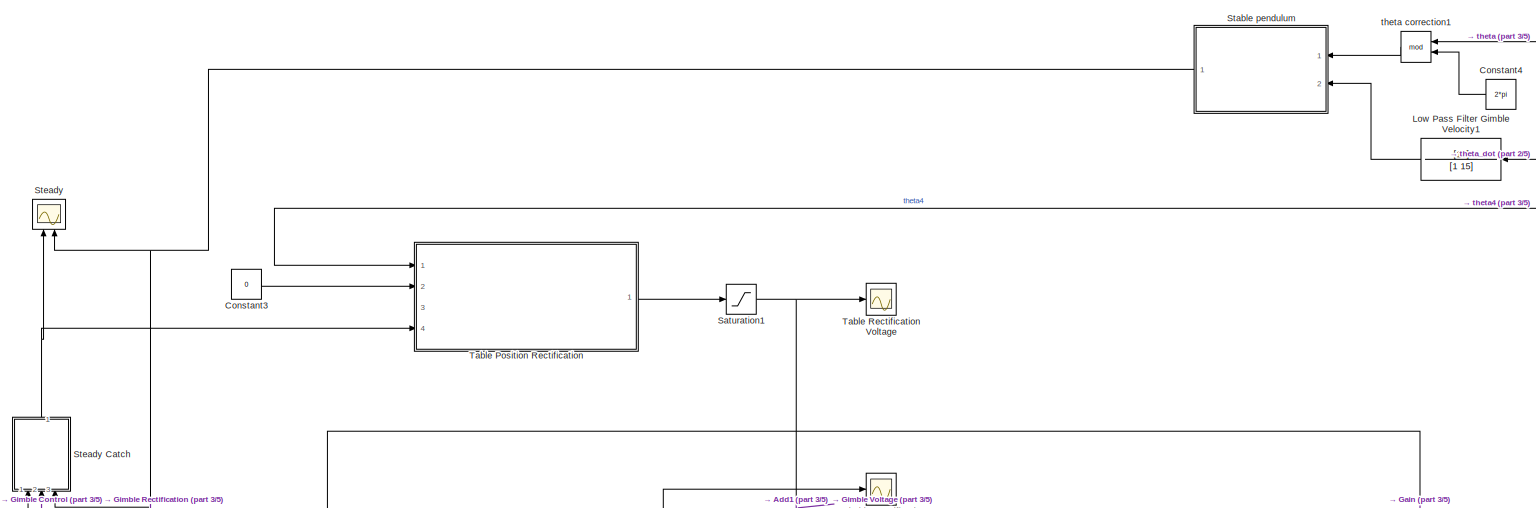
[diagram: root canvas - part 1/5, top left region]
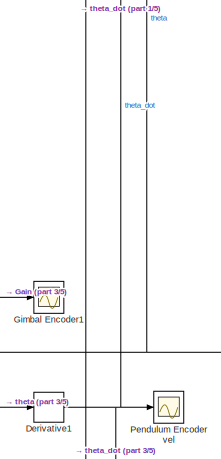
[diagram: root canvas - part 2/5, top right region]
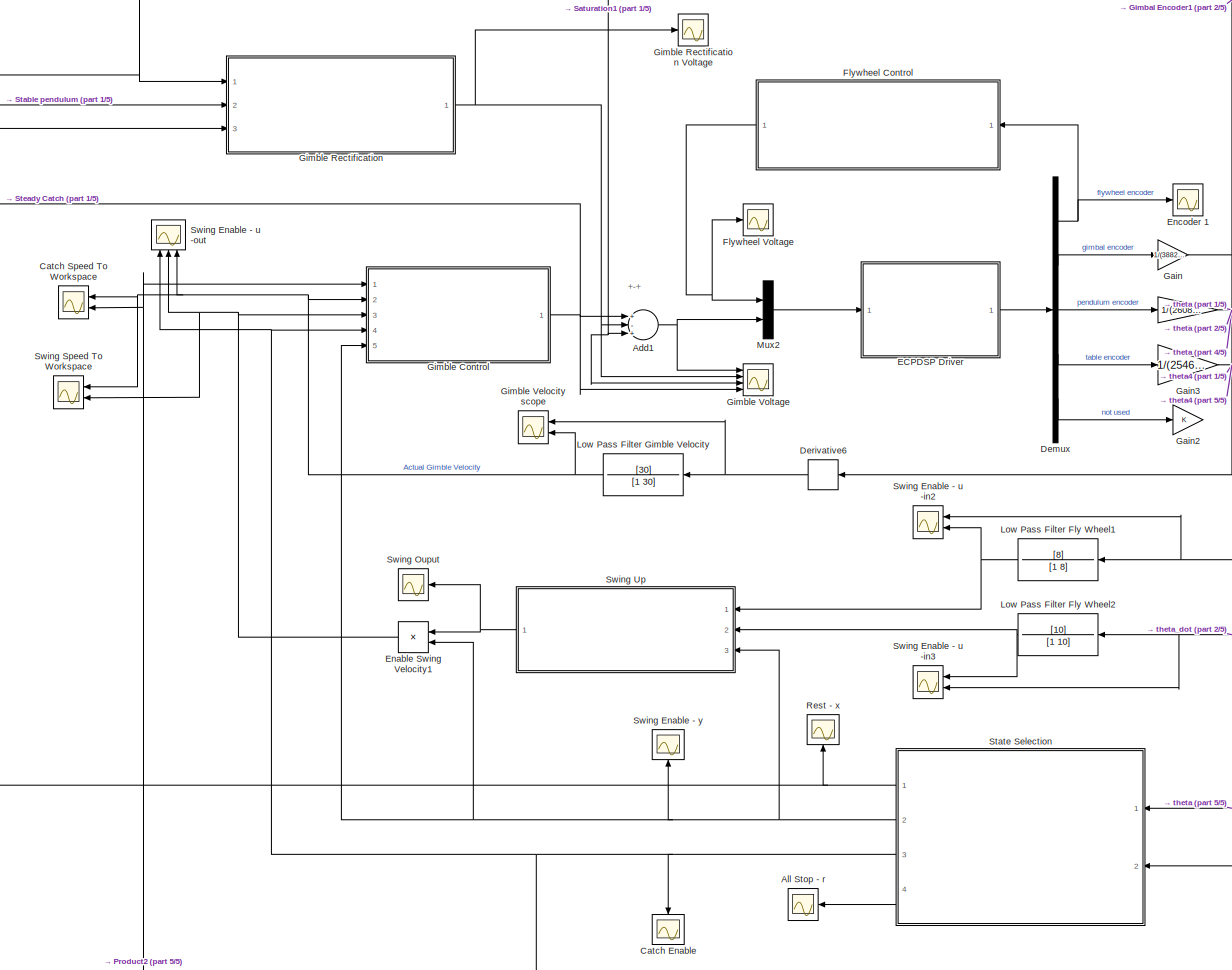
[diagram: root canvas - part 3/5, central region]
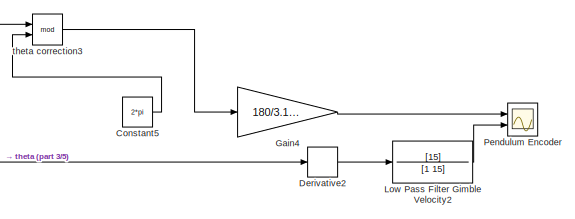
[diagram: root canvas - part 4/5, middle right region]
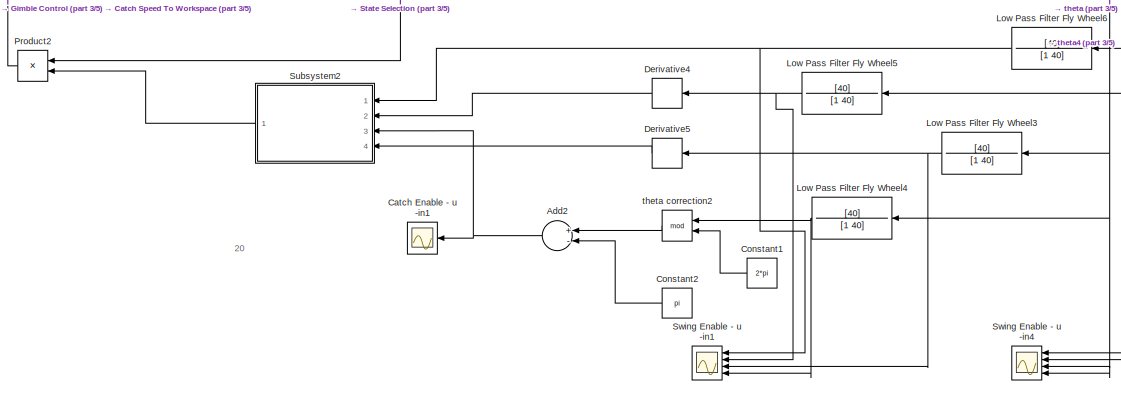
[diagram: root canvas - part 5/5, bottom center region]
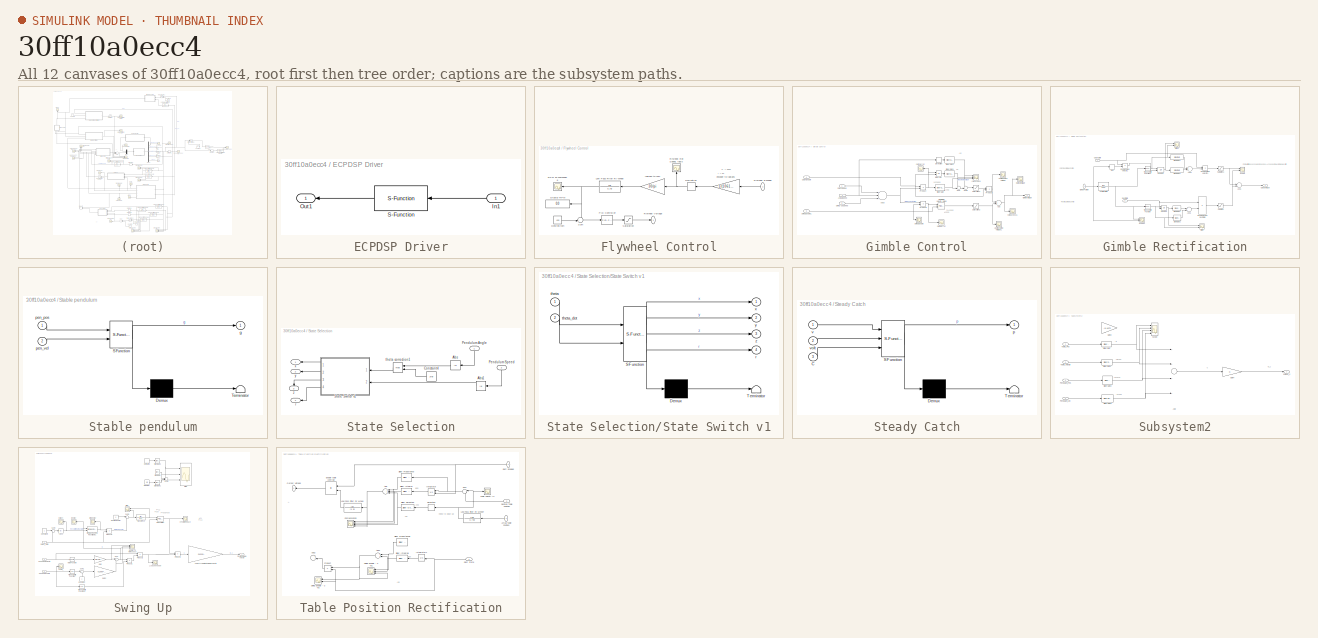
[diagram: thumbnail index - all 12 canvases of the model, root first then tree order]
MODEL slx_30ff10a0ecc4
KIND model
BLOCK [Sum] Add1
  InputSameDT = off
  Inputs = +-+
  OutDataTypeStr = Inherit: Inherit via internal rule
  Ports = [3, 1]
  SaturateOnIntegerOverflow = off
BLOCK [Sum] Add2
  InputSameDT = off
  Inputs = +-
  OutDataTypeStr = Inherit: Inherit via internal rule
  Ports = [2, 1]
  SaturateOnIntegerOverflow = off
BLOCK [Scope] All Stop - r
  Floating = off
  LimitDataPoints = off
  NumInputPorts = 1
  Ports = [1]
  SaveName = ScopeData33
  ShowLegends = off
  YMax = 10
  YMin = -10
BLOCK [Scope] Catch Enable
  Floating = off
  NumInputPorts = 1
  Ports = [1]
  SaveName = ScopeData12
  ShowLegends = off
  YMax = 1.05
  YMin = 0.95
BLOCK [Scope] Catch Enable - u -in1
  Floating = off
  NumInputPorts = 1
  Ports = [1]
  SaveName = ScopeData26
  ShowLegends = off
  YMax = 3.5
  YMin = -3.5
BLOCK [Scope] Catch Speed To Workspace
  DataFormat = StructureWithTime
  Floating = off
  LimitDataPoints = off
  NumInputPorts = 2
  Ports = [2]
  SaveName = Catch_Speed
  SaveToWorkspace = on
  ShowLegends = off
  YMax = 10~5
  YMin = -10~-5
BLOCK [Constant] Constant1
  Value = 2*pi
BLOCK [Constant] Constant2
  Value = pi
BLOCK [Constant] Constant3
  Value = 0
BLOCK [Constant] Constant4
  Value = 2*pi
BLOCK [Constant] Constant5
  Value = 2*pi
BLOCK [Demux] Demux
  Outputs = 5
  Ports = [1, 5]
BLOCK [Derivative] Derivative1
BLOCK [Derivative] Derivative2
BLOCK [Derivative] Derivative4
BLOCK [Derivative] Derivative5
BLOCK [Derivative] Derivative6
BLOCK [SubSystem] ECPDSP Driver
  FunctionWithSeparateData = off
  MaskHideContents = off
  MinAlgLoopOccurrences = off
  Opaque = off
  Ports = [1, 1]
  PropExecContextOutsideSubsystem = off
  RTWSystemCode = Auto
  RequestExecContextInheritance = off
BLOCK [Inport] ECPDSP Driver/In1
  IconDisplay = Port number
BLOCK [Outport] ECPDSP Driver/Out1
  IconDisplay = Port number
BLOCK [S-Function] ECPDSP Driver/S-Function
  EnableBusSupport = off
  FunctionName = ECPDSPDriver
  Parameters = BaseAddr,STime,TimeOutPer,HWAccess
  Ports = [1, 1]
BLOCK [Product] Enable Swing Velocity1
  InputSameDT = off
  OutDataTypeStr = Inherit: Inherit via internal rule
  Ports = [2, 1]
  RndMeth = Floor
  SaturateOnIntegerOverflow = off
BLOCK [Scope] Encoder 1
  DataFormat = StructureWithTime
  Floating = off
  LimitDataPoints = off
  NumInputPorts = 1
  Ports = [1]
  SampleTime = 0
  SaveName = ScopeData3
  ShowLegends = off
  YMax = 8.5e+06
  YMin = 1.5e+06
BLOCK [SubSystem] Flywheel Control
  FunctionWithSeparateData = off
  MaskHideContents = off
  MinAlgLoopOccurrences = off
  Opaque = off
  Ports = [1, 1]
  PropExecContextOutsideSubsystem = off
  RTWSystemCode = Auto
  RequestExecContextInheritance = off
BLOCK [Derivative] Flywheel Control/Derivative
BLOCK [Constant] Flywheel Control/Desired rpm
  Value = 400
BLOCK [Display] Flywheel Control/Display RPM
  Decimation = 1
  Lockdown = off
  Ports = [1]
BLOCK [Inport] Flywheel Control/Flywheel Encoder
  IconDisplay = Port number
BLOCK [Scope] Flywheel Control/Flywheel Rot Speed, rad//s
  DataFormat = StructureWithTime
  Floating = off
  NumInputPorts = 1
  Ports = [1]
  SampleTime = 0
  SaveName = ScopeData4
  ShowLegends = off
BLOCK [Outport] Flywheel Control/Flywheel Voltage
  IconDisplay = Port number
BLOCK [TransferFcn] Flywheel Control/Low Pass Filter Fly Wheel
  Denominator = [1 5]
  Numerator = [5]
BLOCK [Reference] Flywheel Control/PID Controller  REF=simulink/Continuous/PID Controller
  AntiWindupMode = none
  Controller = PID
  D = 0
  DOutDataTypeStr = Inherit: Inherit via internal rule
  DOutMax = []
  DOutMin = []
  DParamDataTypeStr = Inherit: Inherit via internal rule
  DParamMax = []
  DParamMin = []
  ExternalReset = none
  FilterContinuousStateAttributes = ''
  FilterMethod = Forward Euler
  FilterOutDataTypeStr = Inherit: Inherit via internal rule
  FilterOutMax = []
  FilterOutMin = []
  FilterRTWStateStorageClass = Auto
  FilterStateMustResolveToSignalObject = off
  Form = Parallel
  I = 20
  IOutDataTypeStr = Inherit: Inherit via internal rule
  IOutMax = []
  IOutMin = []
  IParamDataTypeStr = Inherit: Inherit via internal rule
  IParamMax = []
  IParamMin = []
  IgnoreLimit = off
  InitialConditionForFilter = 0
  InitialConditionForIntegrator = 0
  InitialConditionSource = internal
  IntegratorContinuousStateAttributes = ''
  IntegratorMethod = Forward Euler
  IntegratorOutDataTypeStr = Inherit: Inherit via internal rule
  IntegratorOutMax = []
  IntegratorOutMin = []
  IntegratorRTWStateStorageClass = Auto
  IntegratorStateMustResolveToSignalObject = off
  Kb = 1
  KbOutDataTypeStr = Inherit: Inherit via internal rule
  KbOutMax = []
  KbOutMin = []
  KbParamDataTypeStr = Inherit: Inherit via internal rule
  KbParamMax = []
  KbParamMin = []
  Kt = 1
  KtOutDataTypeStr = Inherit: Inherit via internal rule
  KtOutMax = []
  KtOutMin = []
  KtParamDataTypeStr = Inherit: Inherit via internal rule
  KtParamMax = []
  KtParamMin = []
  LimitOutput = off
  LinearizeAsGain = on
  LockScale = off
  LowerSaturationLimit = -inf
  N = 100
  NOutDataTypeStr = Inherit: Inherit via internal rule
  NOutMax = []
  NOutMin = []
  NParamDataTypeStr = Inherit: Inherit via internal rule
  NParamMax = []
  NParamMin = []
  P = 4600
  POutDataTypeStr = Inherit: Inherit via internal rule
  POutMax = []
  POutMin = []
  PParamDataTypeStr = Inherit: Inherit via internal rule
  PParamMax = []
  PParamMin = []
  Ports = [1, 1]
  RndMeth = Floor
  SampleTime = 1
  SaturateOnIntegerOverflow = off
  SaturationOutDataTypeStr = Inherit: Same as input
  SaturationOutMax = []
  SaturationOutMin = []
  SourceBlock = simulink/Continuous/PID Controller
  SourceType = PID 1dof
  SumAccumDataTypeStr = Inherit: Inherit via internal rule
  SumDAccumDataTypeStr = Inherit: Inherit via internal rule
  SumDOutDataTypeStr = Inherit: Inherit via internal rule
  SumDOutMax = []
  SumDOutMin = []
  SumI1AccumDataTypeStr = Inherit: Inherit via internal rule
  SumI1OutDataTypeStr = Inherit: Inherit via internal rule
  SumI1OutMax = []
  SumI1OutMin = []
  SumI2AccumDataTypeStr = Inherit: Inherit via internal rule
  SumI2OutDataTypeStr = Inherit: Inherit via internal rule
  SumI2OutMax = []
  SumI2OutMin = []
  SumI3AccumDataTypeStr = Inherit: Inherit via internal rule
  SumI3OutDataTypeStr = Inherit: Inherit via internal rule
  SumI3OutMax = []
  SumI3OutMin = []
  SumOutDataTypeStr = Inherit: Inherit via internal rule
  SumOutMax = []
  SumOutMin = []
  TimeDomain = Continuous-time
  TrackingMode = off
  UpperSaturationLimit = inf
  ZeroCross = on
BLOCK [Scope] Flywheel Control/RPM To Workspace
  DataFormat = StructureWithTime
  Floating = off
  LimitDataPoints = off
  NumInputPorts = 1
  Ports = [1]
  SampleTime = 0
  SaveName = Flywheel_RPM
  SaveToWorkspace = on
  ShowLegends = off
  YMax = 403.9
  YMin = 401.6
BLOCK [Saturate] Flywheel Control/Saturation
  InputPortMap = u0
  LowerLimit = -32000
  Ports = [1, 1]
  UpperLimit = 32000
BLOCK [Sum] Flywheel Control/Sum
  IconShape = round
  InputSameDT = off
  Inputs = -+|
  OutDataTypeStr = Inherit: Inherit via internal rule
  Ports = [2, 1]
  SaturateOnIntegerOverflow = off
BLOCK [Gain] Flywheel Control/encoder to radians
  Gain = 1/(1061*32)
  OutDataTypeStr = Inherit: Inherit via internal rule
  ParamDataTypeStr = Inherit: Inherit via internal rule
  SaturateOnIntegerOverflow = off
BLOCK [Gain] Flywheel Control/rad//sec to rpm
  Gain = 30/pi
  OutDataTypeStr = Inherit: Inherit via internal rule
  ParamDataTypeStr = Inherit: Inherit via internal rule
  SaturateOnIntegerOverflow = off
BLOCK [Scope] Flywheel Voltage
  DataFormat = StructureWithTime
  Floating = off
  LimitDataPoints = off
  NumInputPorts = 1
  Ports = [1]
  SampleTime = 0
  SaveName = ScopeData6
  ShowLegends = off
  YMax = 33600
  YMin = 30400
BLOCK [Gain] Gain
  Gain = 1/(3882*32)
  OutDataTypeStr = Inherit: Inherit via internal rule
  ParamDataTypeStr = Inherit: Inherit via internal rule
  SaturateOnIntegerOverflow = off
BLOCK [Gain] Gain1
  Gain = 1/(2608*32)
  OutDataTypeStr = Inherit: Inherit via internal rule
  ParamDataTypeStr = Inherit: Inherit via internal rule
  SaturateOnIntegerOverflow = off
BLOCK [Gain] Gain2
  OutDataTypeStr = Inherit: Inherit via internal rule
  ParamDataTypeStr = Inherit: Inherit via internal rule
  SaturateOnIntegerOverflow = off
BLOCK [Gain] Gain3
  Gain = 1/(2546*32)
  OutDataTypeStr = Inherit: Inherit via internal rule
  ParamDataTypeStr = Inherit: Inherit via internal rule
  SaturateOnIntegerOverflow = off
BLOCK [Gain] Gain4
  Gain = 180/3.14159
  OutDataTypeStr = Inherit: Inherit via internal rule
  ParamDataTypeStr = Inherit: Inherit via internal rule
  SaturateOnIntegerOverflow = off
BLOCK [Scope] Gimbal Encoder1
  DataFormat = StructureWithTime
  Floating = off
  NumInputPorts = 1
  Ports = [1]
  SampleTime = 0
  SaveName = ScopeData9
  ShowLegends = off
  YMax = 3.25
  YMin = -0.25
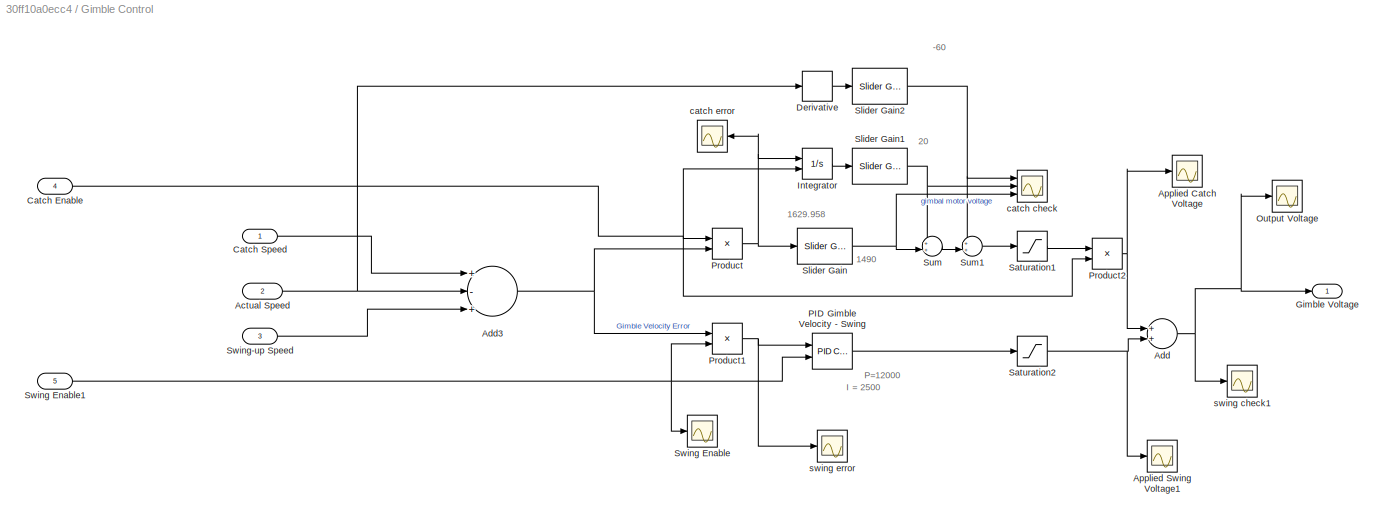
BLOCK [SubSystem] Gimble Control
  FunctionWithSeparateData = off
  MaskHideContents = off
  MinAlgLoopOccurrences = off
  Opaque = off
  Ports = [5, 1]
  PropExecContextOutsideSubsystem = off
  RTWSystemCode = Auto
  RequestExecContextInheritance = off
BLOCK [Inport] Gimble Control/Actual Speed
  IconDisplay = Port number
  Port = 2
BLOCK [Sum] Gimble Control/Add
  InputSameDT = off
  OutDataTypeStr = Inherit: Inherit via internal rule
  Ports = [2, 1]
  SaturateOnIntegerOverflow = off
BLOCK [Sum] Gimble Control/Add3
  InputSameDT = off
  Inputs = +-+
  OutDataTypeStr = Inherit: Inherit via internal rule
  Ports = [3, 1]
  SaturateOnIntegerOverflow = off
BLOCK [Scope] Gimble Control/Applied Catch Voltage
  DataFormat = StructureWithTime
  Floating = off
  LimitDataPoints = off
  NumInputPorts = 1
  Ports = [1]
  SampleTime = 0
  SaveName = ScopeData14
  ShowLegends = off
BLOCK [Scope] Gimble Control/Applied Swing Voltage1
  DataFormat = StructureWithTime
  Floating = off
  LimitDataPoints = off
  NumInputPorts = 1
  Ports = [1]
  SampleTime = 0
  SaveName = ScopeData22
  ShowLegends = off
BLOCK [Inport] Gimble Control/Catch Enable
  IconDisplay = Port number
  Port = 4
BLOCK [Inport] Gimble Control/Catch Speed
  IconDisplay = Port number
BLOCK [Derivative] Gimble Control/Derivative
BLOCK [Outport] Gimble Control/Gimble Voltage
  IconDisplay = Port number
BLOCK [Integrator] Gimble Control/Integrator
  ExternalReset = falling
  Ports = [2, 1]
BLOCK [Scope] Gimble Control/Output Voltage
  DataFormat = StructureWithTime
  Floating = off
  LimitDataPoints = off
  NumInputPorts = 1
  Ports = [1]
  SampleTime = 0
  SaveName = ScopeData37
  ShowLegends = off
BLOCK [Reference] Gimble Control/PID Gimble Velocity - Swing  REF=simulink/Continuous/PID Controller
  AntiWindupMode = none
  Controller = PID
  D = 0
  DOutDataTypeStr = Inherit: Inherit via internal rule
  DOutMax = []
  DOutMin = []
  DParamDataTypeStr = Inherit: Inherit via internal rule
  DParamMax = []
  DParamMin = []
  ExternalReset = falling
  FilterContinuousStateAttributes = ''
  FilterMethod = Forward Euler
  FilterOutDataTypeStr = Inherit: Inherit via internal rule
  FilterOutMax = []
  FilterOutMin = []
  FilterRTWStateStorageClass = Auto
  FilterStateMustResolveToSignalObject = off
  Form = Parallel
  I = 2500
  IOutDataTypeStr = Inherit: Inherit via internal rule
  IOutMax = []
  IOutMin = []
  IParamDataTypeStr = Inherit: Inherit via internal rule
  IParamMax = []
  IParamMin = []
  IgnoreLimit = off
  InitialConditionForFilter = 0
  InitialConditionForIntegrator = 0
  InitialConditionSource = internal
  IntegratorContinuousStateAttributes = ''
  IntegratorMethod = Forward Euler
  IntegratorOutDataTypeStr = Inherit: Inherit via internal rule
  IntegratorOutMax = []
  IntegratorOutMin = []
  IntegratorRTWStateStorageClass = Auto
  IntegratorStateMustResolveToSignalObject = off
  Kb = 1
  KbOutDataTypeStr = Inherit: Inherit via internal rule
  KbOutMax = []
  KbOutMin = []
  KbParamDataTypeStr = Inherit: Inherit via internal rule
  KbParamMax = []
  KbParamMin = []
  Kt = 1
  KtOutDataTypeStr = Inherit: Inherit via internal rule
  KtOutMax = []
  KtOutMin = []
  KtParamDataTypeStr = Inherit: Inherit via internal rule
  KtParamMax = []
  KtParamMin = []
  LimitOutput = off
  LinearizeAsGain = on
  LockScale = off
  LowerSaturationLimit = -inf
  N = 100
  NOutDataTypeStr = Inherit: Inherit via internal rule
  NOutMax = []
  NOutMin = []
  NParamDataTypeStr = Inherit: Inherit via internal rule
  NParamMax = []
  NParamMin = []
  P = 10000
  POutDataTypeStr = Inherit: Inherit via internal rule
  POutMax = []
  POutMin = []
  PParamDataTypeStr = Inherit: Inherit via internal rule
  PParamMax = []
  PParamMin = []
  Ports = [2, 1]
  RndMeth = Floor
  SampleTime = 1
  SaturateOnIntegerOverflow = off
  SaturationOutDataTypeStr = Inherit: Same as input
  SaturationOutMax = []
  SaturationOutMin = []
  SourceBlock = simulink/Continuous/PID Controller
  SourceType = PID 1dof
  SumAccumDataTypeStr = Inherit: Inherit via internal rule
  SumDAccumDataTypeStr = Inherit: Inherit via internal rule
  SumDOutDataTypeStr = Inherit: Inherit via internal rule
  SumDOutMax = []
  SumDOutMin = []
  SumI1AccumDataTypeStr = Inherit: Inherit via internal rule
  SumI1OutDataTypeStr = Inherit: Inherit via internal rule
  SumI1OutMax = []
  SumI1OutMin = []
  SumI2AccumDataTypeStr = Inherit: Inherit via internal rule
  SumI2OutDataTypeStr = Inherit: Inherit via internal rule
  SumI2OutMax = []
  SumI2OutMin = []
  SumI3AccumDataTypeStr = Inherit: Inherit via internal rule
  SumI3OutDataTypeStr = Inherit: Inherit via internal rule
  SumI3OutMax = []
  SumI3OutMin = []
  SumOutDataTypeStr = Inherit: Inherit via internal rule
  SumOutMax = []
  SumOutMin = []
  TimeDomain = Continuous-time
  TrackingMode = off
  UpperSaturationLimit = inf
  ZeroCross = on
BLOCK [Product] Gimble Control/Product
  InputSameDT = off
  OutDataTypeStr = Inherit: Inherit via internal rule
  Ports = [2, 1]
  RndMeth = Floor
  SaturateOnIntegerOverflow = off
BLOCK [Product] Gimble Control/Product1
  InputSameDT = off
  OutDataTypeStr = Inherit: Inherit via internal rule
  Ports = [2, 1]
  RndMeth = Floor
  SaturateOnIntegerOverflow = off
BLOCK [Product] Gimble Control/Product2
  InputSameDT = off
  OutDataTypeStr = Inherit: Inherit via internal rule
  Ports = [2, 1]
  RndMeth = Floor
  SaturateOnIntegerOverflow = off
BLOCK [Saturate] Gimble Control/Saturation1
  InputPortMap = u0
  LowerLimit = -50000
  Ports = [1, 1]
  UpperLimit = 50000
BLOCK [Saturate] Gimble Control/Saturation2
  InputPortMap = u0
  LowerLimit = -23500
  Ports = [1, 1]
  UpperLimit = 23500
BLOCK [Reference] Gimble Control/Slider Gain  REF=simulink/Math
Operations/Slider
Gain
  Ports = [1, 1]
  SourceBlock = simulink/Math\nOperations/Slider\nGain
  SourceType = Slider Gain
  gain = 1410
  high = 2000
  low = 0
BLOCK [Reference] Gimble Control/Slider Gain1  REF=simulink/Math
Operations/Slider
Gain
  Ports = [1, 1]
  SourceBlock = simulink/Math\nOperations/Slider\nGain
  SourceType = Slider Gain
  gain = 20
  high = 2000
  low = 0
BLOCK [Reference] Gimble Control/Slider Gain2  REF=simulink/Math
Operations/Slider
Gain
  Ports = [1, 1]
  SourceBlock = simulink/Math\nOperations/Slider\nGain
  SourceType = Slider Gain
  gain = -4
  high = 0
  low = -200
BLOCK [Sum] Gimble Control/Sum
  IconShape = round
  InputSameDT = off
  Inputs = ++|
  OutDataTypeStr = Inherit: Inherit via internal rule
  Ports = [2, 1]
  SaturateOnIntegerOverflow = off
BLOCK [Sum] Gimble Control/Sum1
  IconShape = round
  InputSameDT = off
  Inputs = ++|
  OutDataTypeStr = Inherit: Inherit via internal rule
  Ports = [2, 1]
  SaturateOnIntegerOverflow = off
BLOCK [Scope] Gimble Control/Swing Enable
  DataFormat = StructureWithTime
  Floating = off
  NumInputPorts = 1
  Ports = [1]
  SampleTime = 0
  SaveName = ScopeData10
  ShowLegends = off
BLOCK [Inport] Gimble Control/Swing Enable1
  IconDisplay = Port number
  Port = 5
BLOCK [Inport] Gimble Control/Swing-up Speed
  IconDisplay = Port number
  Port = 3
BLOCK [Scope] Gimble Control/catch check
  DataFormat = StructureWithTime
  Floating = off
  LimitDataPoints = off
  NumInputPorts = 3
  Ports = [3]
  SampleTime = 0
  SaveName = ScopeData21
  ShowLegends = off
  TimeRange = 420
  YMax = 2750~1~1
  YMin = -2250~-1~-1
BLOCK [Scope] Gimble Control/catch error
  DataFormat = StructureWithTime
  Floating = off
  NumInputPorts = 1
  Ports = [1]
  SampleTime = 0
  SaveName = ScopeData24
  ShowLegends = off
BLOCK [Scope] Gimble Control/swing check1
  DataFormat = StructureWithTime
  Floating = off
  NumInputPorts = 1
  Ports = [1]
  SampleTime = 0
  SaveName = ScopeData27
  ShowLegends = off
BLOCK [Scope] Gimble Control/swing error
  DataFormat = StructureWithTime
  Floating = off
  NumInputPorts = 1
  Ports = [1]
  SampleTime = 0
  SaveName = ScopeData25
  ShowLegends = off
BLOCK [SubSystem] Gimble Rectification
  FunctionWithSeparateData = off
  MaskHideContents = off
  MinAlgLoopOccurrences = off
  Opaque = off
  Ports = [3, 1]
  PropExecContextOutsideSubsystem = off
  RTWSystemCode = Auto
  RequestExecContextInheritance = off
BLOCK [Scope] Gimble Rectification Voltage
  DataFormat = StructureWithTime
  Floating = off
  LimitDataPoints = off
  NumInputPorts = 1
  Ports = [1]
  SampleTime = 0
  SaveName = ScopeData42
  ShowLegends = off
  YMax = -415
  YMin = -467.5
BLOCK [Sum] Gimble Rectification/Add1
  InputSameDT = off
  OutDataTypeStr = Inherit: Inherit via internal rule
  Ports = [2, 1]
  SaturateOnIntegerOverflow = off
BLOCK [Sum] Gimble Rectification/Add5
  InputSameDT = off
  OutDataTypeStr = Inherit: Inherit via internal rule
  Ports = [2, 1]
  SaturateOnIntegerOverflow = off
BLOCK [Sum] Gimble Rectification/Add6
  InputSameDT = off
  Inputs = -+
  OutDataTypeStr = Inherit: Inherit via internal rule
  Ports = [2, 1]
  SaturateOnIntegerOverflow = off
BLOCK [Inport] Gimble Rectification/Catch State
  IconDisplay = Port number
  Port = 2
BLOCK [Product] Gimble Rectification/Enable Rect on Rest State
  InputSameDT = off
  OutDataTypeStr = Inherit: Inherit via internal rule
  Ports = [2, 1]
  RndMeth = Floor
  SaturateOnIntegerOverflow = off
BLOCK [Product] Gimble Rectification/Enable Swing Velocity1
  InputSameDT = off
  OutDataTypeStr = Inherit: Inherit via internal rule
  Ports = [2, 1]
  RndMeth = Floor
  SaturateOnIntegerOverflow = off
BLOCK [Product] Gimble Rectification/Enable Swing Velocity3
  InputSameDT = off
  OutDataTypeStr = Inherit: Inherit via internal rule
  Ports = [2, 1]
  RndMeth = Floor
  SaturateOnIntegerOverflow = off
BLOCK [Scope] Gimble Rectification/Errors
  DataFormat = StructureWithTime
  Floating = off
  LimitDataPoints = off
  NumInputPorts = 2
  Ports = [2]
  SampleTime = 0
  SaveName = ScopeData44
  ShowLegends = off
  YMax = -5.75~-0.105
  YMin = -6.2~-0.135
BLOCK [Scope] Gimble Rectification/Errors1
  DataFormat = StructureWithTime
  Floating = off
  LimitDataPoints = off
  NumInputPorts = 2
  Ports = [2]
  SampleTime = 0
  SaveName = ScopeData11
  ShowLegends = off
  YMax = -3.25~-0.553494
  YMin = -5.25~-0.553494
BLOCK [Inport] Gimble Rectification/Gimble Position
  IconDisplay = Port number
BLOCK [Integrator] Gimble Rectification/Integrator1
  ExternalReset = either
  Ports = [2, 1]
BLOCK [Integrator] Gimble Rectification/Integrator3
  ExternalReset = falling
  Ports = [2, 1]
BLOCK [Outport] Gimble Rectification/Output Votlage
  IconDisplay = Port number
BLOCK [TransferFcn] Gimble Rectification/Position Filter1
  Denominator = [1 30]
  Numerator = [30]
BLOCK [Inport] Gimble Rectification/Rest State
  IconDisplay = Port number
  Port = 3
BLOCK [Saturate] Gimble Rectification/Saturation
  InputPortMap = u0
  LowerLimit = -40000
  Ports = [1, 1]
  UpperLimit = 40000
BLOCK [Saturate] Gimble Rectification/Saturation1
  InputPortMap = u0
  LowerLimit = -2500
  Ports = [1, 1]
  UpperLimit = 2500
BLOCK [Scope] Gimble Rectification/Scope
  DataFormat = StructureWithTime
  Floating = off
  LimitDataPoints = off
  NumInputPorts = 2
  Ports = [2]
  SampleTime = 0
  SaveName = ScopeData41
  ShowLegends = off
  YMax = 1~-54.5
  YMin = -1~-65.5
BLOCK [Scope] Gimble Rectification/Scope1
  DataFormat = StructureWithTime
  Floating = off
  LimitDataPoints = off
  NumInputPorts = 2
  Ports = [2]
  SampleTime = 0
  SaveName = ScopeData45
  ShowLegends = off
  YMax = 0.305~0.305
  YMin = 0.2775~0.2775
BLOCK [Signum] Gimble Rectification/Sign
BLOCK [Reference] Gimble Rectification/Slider Gain1  REF=simulink/Math
Operations/Slider
Gain
  Ports = [1, 1]
  SourceBlock = simulink/Math\nOperations/Slider\nGain
  SourceType = Slider Gain
  gain = 40
  high = 2000
  low = 0
BLOCK [Reference] Gimble Rectification/Slider Gain2  REF=simulink/Math
Operations/Slider
Gain
  Ports = [1, 1]
  SourceBlock = simulink/Math\nOperations/Slider\nGain
  SourceType = Slider Gain
  gain = 990
  high = 2000
  low = 0
BLOCK [Reference] Gimble Rectification/Slider Gain3  REF=simulink/Math
Operations/Slider
Gain
  Ports = [1, 1]
  SourceBlock = simulink/Math\nOperations/Slider\nGain
  SourceType = Slider Gain
  gain = 0
  high = 2000
  low = 0
BLOCK [Reference] Gimble Rectification/Slider Gain4  REF=simulink/Math
Operations/Slider
Gain
  Ports = [1, 1]
  SourceBlock = simulink/Math\nOperations/Slider\nGain
  SourceType = Slider Gain
  gain = 472.8114
  high = 1800
  low = 0
BLOCK [Trigonometry] Gimble Rectification/Trigonometric Function
  Ports = [1, 1]
BLOCK [Trigonometry] Gimble Rectification/Trigonometric Function1
  Ports = [1, 1]
BLOCK [Scope] Gimble Velocity scope
  Floating = off
  LimitDataPoints = off
  NumInputPorts = 2
  Ports = [2]
  SaveName = ScopeData32
  ShowLegends = off
  YMax = 10~5
  YMin = -10~-5
BLOCK [Scope] Gimble Voltage
  Floating = off
  LimitDataPoints = off
  NumInputPorts = 4
  Ports = [4]
  SaveName = ScopeData23
  ShowLegends = off
  TimeRange = 4.21022074346109
  YMax = -459.7~460.8~1~1
  YMin = -460.8~459.7~-1~-1
BLOCK [TransferFcn] Low Pass Filter Fly Wheel1
  Denominator = [1 8]
  Numerator = [8]
BLOCK [TransferFcn] Low Pass Filter Fly Wheel2
  Denominator = [1 10]
  Numerator = [10]
BLOCK [TransferFcn] Low Pass Filter Fly Wheel3
  Denominator = [1 40]
  Numerator = [40]
BLOCK [TransferFcn] Low Pass Filter Fly Wheel4
  Denominator = [1 40]
  Numerator = [40]
BLOCK [TransferFcn] Low Pass Filter Fly Wheel5
  Denominator = [1 40]
  Numerator = [40]
BLOCK [TransferFcn] Low Pass Filter Fly Wheel6
  Denominator = [1 40]
  Numerator = [40]
BLOCK [TransferFcn] Low Pass Filter Gimble Velocity
  Denominator = [1 30]
  Numerator = [30]
BLOCK [TransferFcn] Low Pass Filter Gimble Velocity1
  Denominator = [1 15]
  Numerator = [15]
BLOCK [TransferFcn] Low Pass Filter Gimble Velocity2
  Denominator = [1 15]
  Numerator = [15]
BLOCK [Mux] Mux2
  DisplayOption = bar
  Inputs = 2
  Ports = [2, 1]
BLOCK [Scope] Pendulum Encoder
  DataFormat = StructureWithTime
  Floating = off
  LimitDataPoints = off
  NumInputPorts = 2
  Ports = [2]
  SampleTime = 0
  SaveName = ScopeData5
  ShowLegends = off
  YMax = 0.0933616~-1.33061e-110
  YMin = 0.08447~-1.4e-94
BLOCK [Scope] Pendulum Encoder vel
  DataFormat = StructureWithTime
  Floating = off
  NumInputPorts = 1
  Ports = [1]
  SampleTime = 0
  SaveName = ScopeData19
  ShowLegends = off
  YMax = 0.15
  YMin = -0.08
BLOCK [Product] Product2
  InputSameDT = off
  OutDataTypeStr = Inherit: Inherit via internal rule
  Ports = [2, 1]
  RndMeth = Floor
  SaturateOnIntegerOverflow = off
BLOCK [Scope] Rest - x
  Floating = off
  NumInputPorts = 1
  Ports = [1]
  SaveName = ScopeData15
  ShowLegends = off
  YMax = 10
  YMin = -10
BLOCK [Saturate] Saturation1
  InputPortMap = u0
  LowerLimit = -23500
  Ports = [1, 1]
  UpperLimit = 23500
BLOCK [SubSystem] Stable pendulum
  ErrorFcn = Stateflow.Translate.translate
  FunctionWithSeparateData = off
  MaskHideContents = off
  MinAlgLoopOccurrences = off
  Opaque = off
  PermitHierarchicalResolution = ExplicitOnly
  Ports = [2, 1]
  PropExecContextOutsideSubsystem = off
  RTWSystemCode = Auto
  RequestExecContextInheritance = off
  SFBlockType = Chart
  TreatAsAtomicUnit = on
BLOCK [Demux] Stable pendulum/ Demux 
  Outputs = 1
  Ports = [1, 1]
BLOCK [S-Function] Stable pendulum/ SFunction 
  EnableBusSupport = on
  FunctionName = sf_sfun
  PortCounts = [2 2]
  Ports = [2, 2]
  Tag = Stateflow S-Function plant_block_swing_catch_working_v0 5
BLOCK [Terminator] Stable pendulum/ Terminator 
BLOCK [Outport] Stable pendulum/g
  IconDisplay = Port number
BLOCK [Inport] Stable pendulum/pen_pos
  IconDisplay = Port number
BLOCK [Inport] Stable pendulum/pen_vel
  IconDisplay = Port number
  Port = 2
BLOCK [SubSystem] State Selection
  FunctionWithSeparateData = off
  MaskHideContents = off
  MinAlgLoopOccurrences = off
  Opaque = off
  Ports = [2, 4]
  PropExecContextOutsideSubsystem = off
  RTWSystemCode = Auto
  RequestExecContextInheritance = off
BLOCK [Abs] State Selection/Abs
  SaturateOnIntegerOverflow = off
BLOCK [Abs] State Selection/Abs1
  SaturateOnIntegerOverflow = off
BLOCK [Constant] State Selection/Constant4
  Value = 2*pi
BLOCK [Inport] State Selection/Pendulum Angle
  IconDisplay = Port number
BLOCK [Inport] State Selection/Pendulum Speed
  IconDisplay = Port number
  Port = 2
BLOCK [SubSystem] State Selection/State Switch v1
  ErrorFcn = Stateflow.Translate.translate
  FunctionWithSeparateData = off
  MaskHideContents = off
  MinAlgLoopOccurrences = off
  Opaque = off
  PermitHierarchicalResolution = ExplicitOnly
  Ports = [2, 4]
  PropExecContextOutsideSubsystem = off
  RTWSystemCode = Auto
  RequestExecContextInheritance = off
  SFBlockType = Chart
  TreatAsAtomicUnit = on
BLOCK [Demux] State Selection/State Switch v1/ Demux 
  Outputs = 1
  Ports = [1, 1]
BLOCK [S-Function] State Selection/State Switch v1/ SFunction 
  EnableBusSupport = on
  FunctionName = sf_sfun
  PortCounts = [2 5]
  Ports = [2, 5]
  Tag = Stateflow S-Function plant_block_swing_catch_working_v0 3
BLOCK [Terminator] State Selection/State Switch v1/ Terminator 
BLOCK [Outport] State Selection/State Switch v1/r
  IconDisplay = Port number
  Port = 4
BLOCK [Inport] State Selection/State Switch v1/theta
  IconDisplay = Port number
BLOCK [Inport] State Selection/State Switch v1/theta_dot
  IconDisplay = Port number
  Port = 2
BLOCK [Outport] State Selection/State Switch v1/x
  IconDisplay = Port number
BLOCK [Outport] State Selection/State Switch v1/y
  IconDisplay = Port number
  Port = 2
BLOCK [Outport] State Selection/State Switch v1/z
  IconDisplay = Port number
  Port = 3
BLOCK [Outport] State Selection/r
  IconDisplay = Port number
  Port = 4
BLOCK [Math] State Selection/theta correction1
  Operator = mod
  Ports = [2, 1]
BLOCK [Outport] State Selection/x
  IconDisplay = Port number
BLOCK [Outport] State Selection/y
  IconDisplay = Port number
  Port = 2
BLOCK [Outport] State Selection/z
  IconDisplay = Port number
  Port = 3
BLOCK [Scope] Steady
  DataFormat = StructureWithTime
  Floating = off
  LimitDataPoints = off
  NumInputPorts = 2
  Ports = [2]
  SampleTime = 0
  SaveName = ScopeData43
  ShowLegends = off
  YMax = 33600~5
  YMin = 30400~-5
BLOCK [SubSystem] Steady Catch
  ErrorFcn = Stateflow.Translate.translate
  FunctionWithSeparateData = off
  MaskHideContents = off
  MinAlgLoopOccurrences = off
  Opaque = off
  PermitHierarchicalResolution = ExplicitOnly
  Ports = [3, 1]
  PropExecContextOutsideSubsystem = off
  RTWSystemCode = Auto
  RequestExecContextInheritance = off
  SFBlockType = Chart
  TreatAsAtomicUnit = on
BLOCK [Demux] Steady Catch/ Demux 
  Outputs = 1
  Ports = [1, 1]
BLOCK [S-Function] Steady Catch/ SFunction 
  EnableBusSupport = on
  FunctionName = sf_sfun
  PortCounts = [3 2]
  Ports = [3, 2]
  Tag = Stateflow S-Function plant_block_swing_catch_working_v0 1
BLOCK [Terminator] Steady Catch/ Terminator 
BLOCK [Inport] Steady Catch/C
  IconDisplay = Port number
  Port = 3
BLOCK [Outport] Steady Catch/p
  IconDisplay = Port number
BLOCK [Inport] Steady Catch/v
  IconDisplay = Port number
BLOCK [Inport] Steady Catch/volt
  IconDisplay = Port number
  Port = 2
BLOCK [SubSystem] Subsystem2
  FunctionWithSeparateData = off
  MaskHideContents = off
  MinAlgLoopOccurrences = off
  Opaque = off
  Ports = [4, 1]
  PropExecContextOutsideSubsystem = off
  RTWSystemCode = Auto
  RequestExecContextInheritance = off
BLOCK [Sum] Subsystem2/Add
  InputSameDT = off
  Inputs = ++++
  OutDataTypeStr = Inherit: Inherit via internal rule
  Ports = [4, 1]
  SaturateOnIntegerOverflow = off
BLOCK [Gain] Subsystem2/Gain2
  Gain = -0.4472
  OutDataTypeStr = Inherit: Inherit via internal rule
  ParamDataTypeStr = Inherit: Inherit via internal rule
  SaturateOnIntegerOverflow = off
BLOCK [Gain] Subsystem2/Gain4
  OutDataTypeStr = Inherit: Inherit via internal rule
  ParamDataTypeStr = Inherit: Inherit via internal rule
  SaturateOnIntegerOverflow = off
BLOCK [Inport] Subsystem2/Pendulum_Pos
  IconDisplay = Port number
  Port = 3
BLOCK [Inport] Subsystem2/Pendulum_Vel
  IconDisplay = Port number
  Port = 4
BLOCK [Scope] Subsystem2/Scope
  DataFormat = StructureWithTime
  Floating = off
  LimitDataPoints = off
  NumInputPorts = 4
  Ports = [4]
  SampleTime = 0
  SaveName = ScopeData8
  ShowLegends = off
  YMax = 1.5~12.5~150~90
  YMin = -0.5~-12.5~-150~-100
BLOCK [Reference] Subsystem2/Slider Gain  REF=simulink/Math
Operations/Slider
Gain
  Ports = [1, 1]
  SourceBlock = simulink/Math\nOperations/Slider\nGain
  SourceType = Slider Gain
  gain = -0.55
  high = 5
  low = -20
BLOCK [Reference] Subsystem2/Slider Gain1  REF=simulink/Math
Operations/Slider
Gain
  Ports = [1, 1]
  SourceBlock = simulink/Math\nOperations/Slider\nGain
  SourceType = Slider Gain
  gain = -10.4902
  high = 1
  low = -30
BLOCK [Reference] Subsystem2/Slider Gain2  REF=simulink/Math
Operations/Slider
Gain
  Ports = [1, 1]
  SourceBlock = simulink/Math\nOperations/Slider\nGain
  SourceType = Slider Gain
  gain = -33.397
  high = 1
  low = -80
BLOCK [Reference] Subsystem2/Slider Gain3  REF=simulink/Math
Operations/Slider
Gain
  Ports = [1, 1]
  SourceBlock = simulink/Math\nOperations/Slider\nGain
  SourceType = Slider Gain
  gain = -6.1266
  high = 1
  low = -20
BLOCK [Inport] Subsystem2/Table_Pos
  IconDisplay = Port number
BLOCK [Inport] Subsystem2/Table_Velocity
  IconDisplay = Port number
  Port = 2
BLOCK [Outport] Subsystem2/omega_2
  IconDisplay = Port number
BLOCK [Scope] Swing Enable - u -in1
  Floating = off
  LimitDataPoints = off
  NumInputPorts = 4
  Ports = [4]
  SaveName = ScopeData38
  ShowLegends = off
  YMax = 10~5~5~5
  YMin = -10~-5~-5~-5
BLOCK [Scope] Swing Enable - u -in2
  Floating = off
  LimitDataPoints = off
  NumInputPorts = 2
  Ports = [2]
  SaveName = ScopeData30
  ShowLegends = off
  YMax = 10~5
  YMin = -10~-5
BLOCK [Scope] Swing Enable - u -in3
  Floating = off
  LimitDataPoints = off
  NumInputPorts = 2
  Ports = [2]
  SaveName = ScopeData31
  ShowLegends = off
  YMax = 10~5
  YMin = -10~-5
BLOCK [Scope] Swing Enable - u -in4
  Floating = off
  LimitDataPoints = off
  NumInputPorts = 4
  Ports = [4]
  SaveName = ScopeData2
  ShowLegends = off
  YMax = 0.7~0.7~9.5~9.5
  YMin = -0.5~-0.5~9.33~9.33
BLOCK [Scope] Swing Enable - u -out
  Floating = off
  LimitDataPoints = off
  NumInputPorts = 3
  Ports = [3]
  SaveName = ScopeData18
  ShowLegends = off
  YMax = 10~5~5
  YMin = -10~-5~-5
BLOCK [Scope] Swing Enable - y
  Floating = off
  LimitDataPoints = off
  NumInputPorts = 1
  Ports = [1]
  SaveName = ScopeData16
  ShowLegends = off
  YMax = 10
  YMin = -10
BLOCK [Scope] Swing Ouput
  Floating = off
  NumInputPorts = 1
  Ports = [1]
  SaveName = ScopeData17
  ShowLegends = off
  YMax = 10
  YMin = -10
BLOCK [Scope] Swing Speed To Workspace
  DataFormat = StructureWithTime
  Floating = off
  LimitDataPoints = off
  NumInputPorts = 2
  Ports = [2]
  SaveName = Swing_Speed
  SaveToWorkspace = on
  ShowLegends = off
  YMax = 10~5
  YMin = -10~-5
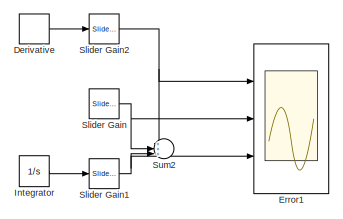
[diagram: Swing Up - part 1/2, top center region]
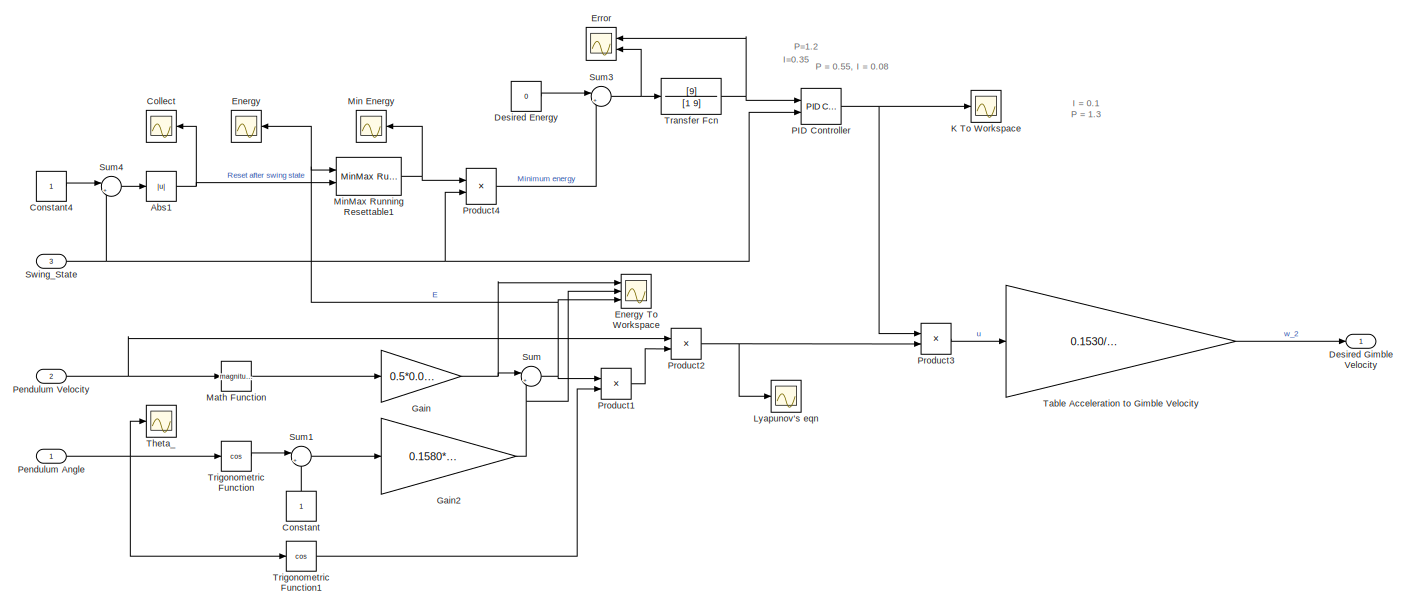
[diagram: Swing Up - part 2/2, full width, bottom band]
BLOCK [SubSystem] Swing Up
  FunctionWithSeparateData = off
  MaskHideContents = off
  MinAlgLoopOccurrences = off
  Opaque = off
  Ports = [3, 1]
  PropExecContextOutsideSubsystem = off
  RTWSystemCode = Auto
  RequestExecContextInheritance = off
BLOCK [Abs] Swing Up/Abs1
  SaturateOnIntegerOverflow = off
BLOCK [Scope] Swing Up/Collect
  DataFormat = StructureWithTime
  Floating = off
  NumInputPorts = 1
  Ports = [1]
  SaveName = ScopeData35
  ShowLegends = off
  YMax = 0.8575
  YMin = 0.82
BLOCK [Constant] Swing Up/Constant
BLOCK [Constant] Swing Up/Constant4
BLOCK [Derivative] Swing Up/Derivative
  Commented = on
BLOCK [Constant] Swing Up/Desired Energy
  Value = 0
BLOCK [Outport] Swing Up/Desired Gimble Velocity
  IconDisplay = Port number
BLOCK [Scope] Swing Up/Energy
  DataFormat = StructureWithTime
  Floating = off
  NumInputPorts = 1
  Ports = [1]
  SaveName = ScopeData7
  ShowLegends = off
  YMax = 0.8575
  YMin = 0.82
BLOCK [Scope] Swing Up/Energy To Workspace
  DataFormat = StructureWithTime
  Floating = off
  LimitDataPoints = off
  NumInputPorts = 3
  Ports = [3]
  SaveName = Energy
  SaveToWorkspace = on
  ShowLegends = off
  YMax = 10~5~5
  YMin = -10~-5~-5
BLOCK [Scope] Swing Up/Error
  DataFormat = StructureWithTime
  Floating = off
  NumInputPorts = 2
  Ports = [2]
  SaveName = ScopeData36
  ShowLegends = off
  YMax = 0.8575~5
  YMin = 0.82~-5
BLOCK [Scope] Swing Up/Error1
  Commented = on
  DataFormat = StructureWithTime
  Floating = off
  LimitDataPoints = off
  NumInputPorts = 3
  Ports = [3]
  ShowLegends = off
  YMax = 1~1.38778e-17~-0.0005
  YMin = -1~-0.09~-0.00075
BLOCK [Gain] Swing Up/Gain
  Gain = 0.5*0.0131
  OutDataTypeStr = Inherit: Inherit via internal rule
  ParamDataTypeStr = Inherit: Inherit via internal rule
  SaturateOnIntegerOverflow = off
BLOCK [Gain] Swing Up/Gain2
  Gain = 0.1580*9.81*0.2698
  OutDataTypeStr = Inherit: Inherit via internal rule
  ParamDataTypeStr = Inherit: Inherit via internal rule
  SaturateOnIntegerOverflow = off
BLOCK [Integrator] Swing Up/Integrator
  Commented = on
  ExternalReset = falling
  Ports = [2, 1]
BLOCK [Scope] Swing Up/K To Workspace
  DataFormat = StructureWithTime
  Floating = off
  LimitDataPoints = off
  NumInputPorts = 1
  Ports = [1]
  SaveName = Swing_Gain
  SaveToWorkspace = on
  ShowLegends = off
  YMax = 8.5
  YMin = -1.5
BLOCK [Scope] Swing Up/Lyapunov's eqn
  DataFormat = StructureWithTime
  Floating = off
  LimitDataPoints = off
  NumInputPorts = 1
  Ports = [1]
  SaveName = ScopeData1
  ShowLegends = off
  YMax = 10
  YMin = -10
BLOCK [Math] Swing Up/Math Function
  Operator = magnitude^2
  Ports = [1, 1]
BLOCK [Scope] Swing Up/Min Energy
  DataFormat = StructureWithTime
  Floating = off
  NumInputPorts = 1
  Ports = [1]
  SaveName = ScopeData34
  ShowLegends = off
  YMax = 0.8575
  YMin = 0.82
BLOCK [Reference] Swing Up/MinMax Running Resettable1  REF=simulink/Math
Operations/MinMax
Running
Resettable
  Function = min
  Ports = [2, 1]
  SourceBlock = simulink/Math\nOperations/MinMax\nRunning\nResettable
  SourceType = MinMax Running Resettable
  vinit = 0.85
BLOCK [Reference] Swing Up/PID Controller  REF=simulink/Continuous/PID Controller
  AntiWindupMode = none
  Controller = PID
  D = 0
  DOutDataTypeStr = Inherit: Inherit via internal rule
  DOutMax = []
  DOutMin = []
  DParamDataTypeStr = Inherit: Inherit via internal rule
  DParamMax = []
  DParamMin = []
  ExternalReset = falling
  FilterContinuousStateAttributes = ''
  FilterMethod = Forward Euler
  FilterOutDataTypeStr = Inherit: Inherit via internal rule
  FilterOutMax = []
  FilterOutMin = []
  FilterRTWStateStorageClass = Auto
  FilterStateMustResolveToSignalObject = off
  Form = Parallel
  I = 0.06
  IOutDataTypeStr = Inherit: Inherit via internal rule
  IOutMax = []
  IOutMin = []
  IParamDataTypeStr = Inherit: Inherit via internal rule
  IParamMax = []
  IParamMin = []
  IgnoreLimit = off
  InitialConditionForFilter = 0
  InitialConditionForIntegrator = 0
  InitialConditionSource = internal
  IntegratorContinuousStateAttributes = ''
  IntegratorMethod = Forward Euler
  IntegratorOutDataTypeStr = Inherit: Inherit via internal rule
  IntegratorOutMax = []
  IntegratorOutMin = []
  IntegratorRTWStateStorageClass = Auto
  IntegratorStateMustResolveToSignalObject = off
  Kb = 1
  KbOutDataTypeStr = Inherit: Inherit via internal rule
  KbOutMax = []
  KbOutMin = []
  KbParamDataTypeStr = Inherit: Inherit via internal rule
  KbParamMax = []
  KbParamMin = []
  Kt = 1
  KtOutDataTypeStr = Inherit: Inherit via internal rule
  KtOutMax = []
  KtOutMin = []
  KtParamDataTypeStr = Inherit: Inherit via internal rule
  KtParamMax = []
  KtParamMin = []
  LimitOutput = off
  LinearizeAsGain = on
  LockScale = off
  LowerSaturationLimit = -inf
  N = 100
  NOutDataTypeStr = Inherit: Inherit via internal rule
  NOutMax = []
  NOutMin = []
  NParamDataTypeStr = Inherit: Inherit via internal rule
  NParamMax = []
  NParamMin = []
  P = 0.48
  POutDataTypeStr = Inherit: Inherit via internal rule
  POutMax = []
  POutMin = []
  PParamDataTypeStr = Inherit: Inherit via internal rule
  PParamMax = []
  PParamMin = []
  Ports = [2, 1]
  RndMeth = Floor
  SampleTime = 1
  SaturateOnIntegerOverflow = off
  SaturationOutDataTypeStr = Inherit: Same as input
  SaturationOutMax = []
  SaturationOutMin = []
  SourceBlock = simulink/Continuous/PID Controller
  SourceType = PID 1dof
  SumAccumDataTypeStr = Inherit: Inherit via internal rule
  SumDAccumDataTypeStr = Inherit: Inherit via internal rule
  SumDOutDataTypeStr = Inherit: Inherit via internal rule
  SumDOutMax = []
  SumDOutMin = []
  SumI1AccumDataTypeStr = Inherit: Inherit via internal rule
  SumI1OutDataTypeStr = Inherit: Inherit via internal rule
  SumI1OutMax = []
  SumI1OutMin = []
  SumI2AccumDataTypeStr = Inherit: Inherit via internal rule
  SumI2OutDataTypeStr = Inherit: Inherit via internal rule
  SumI2OutMax = []
  SumI2OutMin = []
  SumI3AccumDataTypeStr = Inherit: Inherit via internal rule
  SumI3OutDataTypeStr = Inherit: Inherit via internal rule
  SumI3OutMax = []
  SumI3OutMin = []
  SumOutDataTypeStr = Inherit: Inherit via internal rule
  SumOutMax = []
  SumOutMin = []
  TimeDomain = Continuous-time
  TrackingMode = off
  UpperSaturationLimit = inf
  ZeroCross = on
BLOCK [Inport] Swing Up/Pendulum Angle
  IconDisplay = Port number
BLOCK [Inport] Swing Up/Pendulum Velocity
  IconDisplay = Port number
  Port = 2
BLOCK [Product] Swing Up/Product1
  InputSameDT = off
  OutDataTypeStr = Inherit: Inherit via internal rule
  Ports = [2, 1]
  RndMeth = Floor
  SaturateOnIntegerOverflow = off
BLOCK [Product] Swing Up/Product2
  InputSameDT = off
  OutDataTypeStr = Inherit: Inherit via internal rule
  Ports = [2, 1]
  RndMeth = Floor
  SaturateOnIntegerOverflow = off
BLOCK [Product] Swing Up/Product3
  InputSameDT = off
  OutDataTypeStr = Inherit: Inherit via internal rule
  Ports = [2, 1]
  RndMeth = Floor
  SaturateOnIntegerOverflow = off
BLOCK [Product] Swing Up/Product4
  InputSameDT = off
  OutDataTypeStr = Inherit: Inherit via internal rule
  Ports = [2, 1]
  RndMeth = Floor
  SaturateOnIntegerOverflow = off
BLOCK [Reference] Swing Up/Slider Gain  REF=simulink/Math
Operations/Slider
Gain
  Commented = on
  Ports = [1, 1]
  SourceBlock = simulink/Math\nOperations/Slider\nGain
  SourceType = Slider Gain
  gain = 0.37
  high = 1
  low = 0
BLOCK [Reference] Swing Up/Slider Gain1  REF=simulink/Math
Operations/Slider
Gain
  Commented = on
  Ports = [1, 1]
  SourceBlock = simulink/Math\nOperations/Slider\nGain
  SourceType = Slider Gain
  gain = 0.08
  high = 0.5
  low = 0
BLOCK [Reference] Swing Up/Slider Gain2  REF=simulink/Math
Operations/Slider
Gain
  Commented = on
  Ports = [1, 1]
  SourceBlock = simulink/Math\nOperations/Slider\nGain
  SourceType = Slider Gain
  gain = 0
  high = 0
  low = -0.5
BLOCK [Sum] Swing Up/Sum
  IconShape = round
  InputSameDT = off
  Inputs = |++
  OutDataTypeStr = Inherit: Inherit via internal rule
  Ports = [2, 1]
  SaturateOnIntegerOverflow = off
BLOCK [Sum] Swing Up/Sum1
  IconShape = round
  InputSameDT = off
  Inputs = |++
  OutDataTypeStr = Inherit: Inherit via internal rule
  Ports = [2, 1]
  SaturateOnIntegerOverflow = off
BLOCK [Sum] Swing Up/Sum2
  Commented = on
  IconShape = round
  InputSameDT = off
  Inputs = +++|
  OutDataTypeStr = Inherit: Inherit via internal rule
  Ports = [3, 1]
  SaturateOnIntegerOverflow = off
BLOCK [Sum] Swing Up/Sum3
  IconShape = round
  InputSameDT = off
  Inputs = |+-
  OutDataTypeStr = Inherit: Inherit via internal rule
  Ports = [2, 1]
  SaturateOnIntegerOverflow = off
BLOCK [Sum] Swing Up/Sum4
  IconShape = round
  InputSameDT = off
  Inputs = |+-
  OutDataTypeStr = Inherit: Inherit via internal rule
  Ports = [2, 1]
  SaturateOnIntegerOverflow = off
BLOCK [Inport] Swing Up/Swing_State
  IconDisplay = Port number
  Port = 3
BLOCK [Gain] Swing Up/Table Acceleration to Gimble Velocity
  Gain = 0.1530/(41.8879*0.0273*0.37)
  OutDataTypeStr = Inherit: Inherit via internal rule
  ParamDataTypeStr = Inherit: Inherit via internal rule
  SaturateOnIntegerOverflow = off
BLOCK [Scope] Swing Up/Theta_
  DataFormat = StructureWithTime
  Floating = off
  LimitDataPoints = off
  NumInputPorts = 1
  Ports = [1]
  SaveName = ScopeData28
  ShowLegends = off
  YMax = 10
  YMin = -10
BLOCK [TransferFcn] Swing Up/Transfer Fcn
  Denominator = [1 9]
  Numerator = [9]
BLOCK [Trigonometry] Swing Up/Trigonometric Function
  Operator = cos
  Ports = [1, 1]
BLOCK [Trigonometry] Swing Up/Trigonometric Function1
  Operator = cos
  Ports = [1, 1]
BLOCK [SubSystem] Table Position Rectification
  FunctionWithSeparateData = off
  MaskHideContents = off
  MinAlgLoopOccurrences = off
  Opaque = off
  Ports = [4, 1]
  PropExecContextOutsideSubsystem = off
  RTWSystemCode = Auto
  RequestExecContextInheritance = off
BLOCK [Inport] Table Position Rectification/Actual Table Position
  IconDisplay = Port number
BLOCK [Sum] Table Position Rectification/Add
  InputSameDT = off
  Inputs = +++
  OutDataTypeStr = Inherit: Inherit via internal rule
  Ports = [3, 1]
  SaturateOnIntegerOverflow = off
BLOCK [Sum] Table Position Rectification/Add1
  Commented = on
  InputSameDT = off
  OutDataTypeStr = Inherit: Inherit via internal rule
  Ports = [2, 1]
  SaturateOnIntegerOverflow = off
BLOCK [Sum] Table Position Rectification/Add2
  InputSameDT = off
  OutDataTypeStr = Inherit: Inherit via internal rule
  Ports = [2, 1]
  SaturateOnIntegerOverflow = off
BLOCK [Scope] Table Position Rectification/Compensation
  Floating = off
  LimitDataPoints = off
  NumInputPorts = 4
  Ports = [4]
  SaveName = ScopeData40
  ShowLegends = off
  YMax = 150~68~1~225
  YMin = -200~48~-1~-150
BLOCK [Derivative] Table Position Rectification/Derivative
BLOCK [Inport] Table Position Rectification/Desired Table Position
  IconDisplay = Port number
  Port = 2
BLOCK [Product] Table Position Rectification/Enable table control2
  InputSameDT = off
  OutDataTypeStr = Inherit: Inherit via internal rule
  Ports = [2, 1]
  RndMeth = Floor
  SaturateOnIntegerOverflow = off
BLOCK [Integrator] Table Position Rectification/Integrator
  ExternalReset = falling
  Ports = [2, 1]
BLOCK [Integrator] Table Position Rectification/Integrator1
  Commented = on
  ExternalReset = falling
  Ports = [2, 1]
BLOCK [TransferFcn] Table Position Rectification/Low Pass Filter Fly Wheel
  Denominator = [1 9]
  Numerator = [9]
BLOCK [TransferFcn] Table Position Rectification/Low Pass Filter Fly Wheel7
  Denominator = [1 40]
  Numerator = [40]
BLOCK [Outport] Table Position Rectification/Output Voltage
  IconDisplay = Port number
BLOCK [Product] Table Position Rectification/Product
  Commented = on
  InputSameDT = off
  OutDataTypeStr = Inherit: Inherit via internal rule
  Ports = [2, 1]
  RndMeth = Floor
  SaturateOnIntegerOverflow = off
BLOCK [Inport] Table Position Rectification/Rect Enabled
  IconDisplay = Port number
  Port = 4
BLOCK [Inport] Table Position Rectification/Rest State
  IconDisplay = Port number
  Port = 3
BLOCK [Reference] Table Position Rectification/Slider Derivative  REF=simulink/Math
Operations/Slider
Gain
  Ports = [1, 1]
  SourceBlock = simulink/Math\nOperations/Slider\nGain
  SourceType = Slider Gain
  gain = -8
  high = 0
  low = -200
BLOCK [Reference] Table Position Rectification/Slider Integral  REF=simulink/Math
Operations/Slider
Gain
  Ports = [1, 1]
  SourceBlock = simulink/Math\nOperations/Slider\nGain
  SourceType = Slider Gain
  gain = 38.249
  high = 1000
  low = 0
BLOCK [Reference] Table Position Rectification/Slider Integral1  REF=simulink/Math
Operations/Slider
Gain
  Commented = on
  Ports = [1, 1]
  SourceBlock = simulink/Math\nOperations/Slider\nGain
  SourceType = Slider Gain
  gain = 126.5
  high = 5000
  low = 0
BLOCK [Reference] Table Position Rectification/Slider Proportional  REF=simulink/Math
Operations/Slider
Gain
  Ports = [1, 1]
  SourceBlock = simulink/Math\nOperations/Slider\nGain
  SourceType = Slider Gain
  gain = 70
  high = 500
  low = 0
BLOCK [Reference] Table Position Rectification/Slider Proportional1  REF=simulink/Math
Operations/Slider
Gain
  Commented = on
  Ports = [1, 1]
  SourceBlock = simulink/Math\nOperations/Slider\nGain
  SourceType = Slider Gain
  gain = 111.29
  high = 5000
  low = 0
BLOCK [Sum] Table Position Rectification/Sum
  IconShape = round
  InputSameDT = off
  Inputs = |-+
  OutDataTypeStr = Inherit: Inherit via internal rule
  Ports = [2, 1]
  SaturateOnIntegerOverflow = off
BLOCK [Scope] Table Position Rectification/Swing Enable - u -in1
  Commented = on
  Floating = off
  LimitDataPoints = off
  NumInputPorts = 3
  Ports = [3]
  SaveName = ScopeData46
  ShowLegends = off
  YMax = 2.475~13.75~16.25
  YMin = 2.15~11~13
BLOCK [Scope] Table Position Rectification/Swing Enable - u -in2
  Commented = on
  Floating = off
  LimitDataPoints = off
  NumInputPorts = 2
  Ports = [2]
  SaveName = ScopeData47
  ShowLegends = off
  YMax = 9~1.05
  YMin = 6.7~0.95
BLOCK [Scope] Table Position Rectification/Table Velocity In
  Floating = off
  LimitDataPoints = off
  NumInputPorts = 1
  Ports = [1]
  SaveName = ScopeData13
  ShowLegends = off
  YMax = 0.003
  YMin = -0.016
BLOCK [Scope] Table Rectification Voltage
  DataFormat = StructureWithTime
  Floating = off
  LimitDataPoints = off
  NumInputPorts = 1
  Ports = [1]
  SampleTime = 0
  SaveName = ScopeData29
  ShowLegends = off
  YMax = -415
  YMin = -467.5
BLOCK [Math] theta correction1
  Operator = mod
  Ports = [2, 1]
BLOCK [Math] theta correction2
  Operator = mod
  Ports = [2, 1]
BLOCK [Math] theta correction3
  Operator = mod
  Ports = [2, 1]
ANNOTATION (root): +-+
ANNOTATION (root): 20
ANNOTATION Flywheel Control: I = 20
ANNOTATION Flywheel Control: P = 4600
ANNOTATION Gimble Control: -60
ANNOTATION Gimble Control: 1490
ANNOTATION Gimble Control: 1629.958
ANNOTATION Gimble Control: 20
ANNOTATION Gimble Control: I = 2500
ANNOTATION Gimble Control: P=12000
ANNOTATION Gimble Rectification: Catching Gimble Control
ANNOTATION Gimble Rectification: From last file, these should go in and be ++, changed to -- as gimble was drifting the wrong way
ANNOTATION Gimble Rectification: Resting Gimble Control
ANNOTATION Subsystem2: -.8
ANNOTATION Subsystem2: -33.7076
ANNOTATION Subsystem2: -6.1266
ANNOTATION Subsystem2: -9.8702
ANNOTATION Subsystem2: u
ANNOTATION Subsystem2: w_2
ANNOTATION Swing Up: I = 0.1 P = 1.3
ANNOTATION Swing Up: I=0.35
ANNOTATION Swing Up: P = 0.55, I = 0.08
ANNOTATION Swing Up: P=1.2
ANNOTATION Table Position Rectification: +-
ANNOTATION Table Position Rectification: -240
ANNOTATION Table Position Rectification: -60
ANNOTATION Table Position Rectification: 850
ANNOTATION Table Position Rectification: need to clean up
NET Add1:1 -> Gimble Voltage:1, Mux2:2
NET Add2:1 -> Catch Enable - u -in1:1, Subsystem2:3
LINE Constant1:1 -> theta correction2:2
LINE Constant2:1 -> Add2:2
LINE Constant3:1 -> Table Position Rectification:2
LINE Constant4:1 -> theta correction1:2
LINE Constant5:1 -> theta correction3:2
NET Demux:1 -> Encoder 1:1, Flywheel Control:1
LINE Demux:2 -> Gain:1
LINE Demux:3 -> Gain1:1
LINE Demux:4 -> Gain3:1
LINE Demux:5 -> Gain2:1
NET Derivative1:1 -> Low Pass Filter Fly Wheel2:1, Low Pass Filter Gimble Velocity1:1, Pendulum Encoder vel:1, State Selection:2, Swing Enable - u -in3:2
LINE Derivative2:1 -> Low Pass Filter Gimble Velocity2:1
LINE Derivative4:1 -> Subsystem2:2
LINE Derivative5:1 -> Subsystem2:4
NET Derivative6:1 -> Gimble Velocity scope:1, Low Pass Filter Gimble Velocity:1
LINE ECPDSP Driver/In1:1 -> ECPDSP Driver/S-Function:1
LINE ECPDSP Driver/S-Function:1 -> ECPDSP Driver/Out1:1
LINE ECPDSP Driver:1 -> Demux:1
NET Enable Swing Velocity1:1 -> Gimble Control:3, Swing Enable - u -out:2, Swing Speed To Workspace:2
NET Flywheel Control/Derivative:1 -> Flywheel Control/Flywheel Rot Speed, rad//s:1, Flywheel Control/rad//sec to rpm:1
LINE Flywheel Control/Desired rpm:1 -> Flywheel Control/Sum:2
LINE Flywheel Control/Flywheel Encoder:1 -> Flywheel Control/encoder to radians:1
NET Flywheel Control/Low Pass Filter Fly Wheel:1 -> Flywheel Control/Display RPM:1, Flywheel Control/RPM To Workspace:1, Flywheel Control/Sum:1
LINE Flywheel Control/PID Controller:1 -> Flywheel Control/Saturation:1
LINE Flywheel Control/Saturation:1 -> Flywheel Control/Flywheel Voltage:1
LINE Flywheel Control/Sum:1 -> Flywheel Control/PID Controller:1
LINE Flywheel Control/encoder to radians:1 -> Flywheel Control/Derivative:1
LINE Flywheel Control/rad//sec to rpm:1 -> Flywheel Control/Low Pass Filter Fly Wheel:1
NET Flywheel Control:1 -> Flywheel Voltage:1, Mux2:1
NET Gain1:1 -> Derivative1:1, Derivative2:1, Low Pass Filter Fly Wheel1:1, Low Pass Filter Fly Wheel3:1, Low Pass Filter Fly Wheel4:1, State Selection:1, Swing Enable - u -in2:1, Swing Enable - u -in4:3, Swing Enable - u -in4:4, theta correction1:1, theta correction3:1
NET Gain3:1 -> Low Pass Filter Fly Wheel5:1, Low Pass Filter Fly Wheel6:1, Swing Enable - u -in4:1, Swing Enable - u -in4:2, Table Position Rectification:1
LINE Gain4:1 -> Pendulum Encoder:1
NET Gain:1 -> Derivative6:1, Gimbal Encoder1:1, Gimble Rectification:1, Steady Catch:1
NET Gimble Control/Actual Speed:1 -> Gimble Control/Add3:2, Gimble Control/Derivative:1
NET Gimble Control/Add3:1 -> Gimble Control/Product1:1, Gimble Control/Product:2
NET Gimble Control/Add:1 -> Gimble Control/Gimble Voltage:1, Gimble Control/Output Voltage:1, Gimble Control/swing check1:1
NET Gimble Control/Catch Enable:1 -> Gimble Control/Integrator:2, Gimble Control/Product2:2, Gimble Control/Product:1
LINE Gimble Control/Catch Speed:1 -> Gimble Control/Add3:1
LINE Gimble Control/Derivative:1 -> Gimble Control/Slider Gain2:1
LINE Gimble Control/Integrator:1 -> Gimble Control/Slider Gain1:1
LINE Gimble Control/PID Gimble Velocity - Swing:1 -> Gimble Control/Saturation2:1
NET Gimble Control/Product1:1 -> Gimble Control/PID Gimble Velocity - Swing:1, Gimble Control/swing error:1
NET Gimble Control/Product2:1 -> Gimble Control/Add:1, Gimble Control/Applied Catch Voltage:1
NET Gimble Control/Product:1 -> Gimble Control/Integrator:1, Gimble Control/Slider Gain:1, Gimble Control/catch error:1
LINE Gimble Control/Saturation1:1 -> Gimble Control/Product2:1
NET Gimble Control/Saturation2:1 -> Gimble Control/Add:2, Gimble Control/Applied Swing Voltage1:1
NET Gimble Control/Slider Gain1:1 -> Gimble Control/Sum:1, Gimble Control/catch check:2
NET Gimble Control/Slider Gain2:1 -> Gimble Control/Sum1:1, Gimble Control/catch check:1
NET Gimble Control/Slider Gain:1 -> Gimble Control/Sum:2, Gimble Control/catch check:3
LINE Gimble Control/Sum1:1 -> Gimble Control/Saturation1:1
LINE Gimble Control/Sum:1 -> Gimble Control/Sum1:2
NET Gimble Control/Swing Enable1:1 -> Gimble Control/PID Gimble Velocity - Swing:2, Gimble Control/Product1:2, Gimble Control/Swing Enable:1
LINE Gimble Control/Swing-up Speed:1 -> Gimble Control/Add3:3
NET Gimble Control:1 -> Add1:1, Gimble Voltage:4, Steady Catch:2
LINE Gimble Rectification/Add1:1 -> Gimble Rectification/Enable Swing Velocity3:2
LINE Gimble Rectification/Add5:1 -> Gimble Rectification/Enable Rect on Rest State:2
LINE Gimble Rectification/Add6:1 -> Gimble Rectification/Output Votlage:1
NET Gimble Rectification/Catch State:1 -> Gimble Rectification/Enable Swing Velocity1:1, Gimble Rectification/Enable Swing Velocity3:1
LINE Gimble Rectification/Enable Rect on Rest State:1 -> Gimble Rectification/Saturation:1
LINE Gimble Rectification/Enable Swing Velocity1:1 -> Gimble Rectification/Integrator1:2
LINE Gimble Rectification/Enable Swing Velocity3:1 -> Gimble Rectification/Saturation1:1
NET Gimble Rectification/Gimble Position:1 -> Gimble Rectification/Position Filter1:1, Gimble Rectification/Scope1:2, Gimble Rectification/Sign:1
NET Gimble Rectification/Integrator1:1 -> Gimble Rectification/Errors1:1, Gimble Rectification/Slider Gain3:1
NET Gimble Rectification/Integrator3:1 -> Gimble Rectification/Errors:1, Gimble Rectification/Slider Gain1:1
NET Gimble Rectification/Position Filter1:1 -> Gimble Rectification/Scope1:1, Gimble Rectification/Trigonometric Function1:1, Gimble Rectification/Trigonometric Function:1
NET Gimble Rectification/Rest State:1 -> Gimble Rectification/Enable Rect on Rest State:1, Gimble Rectification/Integrator3:2
NET Gimble Rectification/Saturation1:1 -> Gimble Rectification/Add6:1, Gimble Rectification/Scope:1
NET Gimble Rectification/Saturation:1 -> Gimble Rectification/Add6:2, Gimble Rectification/Scope:2
LINE Gimble Rectification/Sign:1 -> Gimble Rectification/Enable Swing Velocity1:2
LINE Gimble Rectification/Slider Gain1:1 -> Gimble Rectification/Add5:1
LINE Gimble Rectification/Slider Gain2:1 -> Gimble Rectification/Add5:2
LINE Gimble Rectification/Slider Gain3:1 -> Gimble Rectification/Add1:2
LINE Gimble Rectification/Slider Gain4:1 -> Gimble Rectification/Add1:1
NET Gimble Rectification/Trigonometric Function1:1 -> Gimble Rectification/Errors1:2, Gimble Rectification/Integrator1:1, Gimble Rectification/Slider Gain4:1
NET Gimble Rectification/Trigonometric Function:1 -> Gimble Rectification/Errors:2, Gimble Rectification/Integrator3:1, Gimble Rectification/Slider Gain2:1
NET Gimble Rectification:1 -> Add1:2, Gimble Rectification Voltage:1, Gimble Voltage:2
NET Low Pass Filter Fly Wheel1:1 -> Swing Enable - u -in2:2, Swing Up:1
NET Low Pass Filter Fly Wheel2:1 -> Swing Enable - u -in3:1, Swing Up:2
NET Low Pass Filter Fly Wheel3:1 -> Derivative5:1, Swing Enable - u -in1:3
NET Low Pass Filter Fly Wheel4:1 -> Swing Enable - u -in1:4, theta correction2:1
NET Low Pass Filter Fly Wheel5:1 -> Derivative4:1, Swing Enable - u -in1:2
NET Low Pass Filter Fly Wheel6:1 -> Subsystem2:1, Swing Enable - u -in1:1
LINE Low Pass Filter Gimble Velocity1:1 -> Stable pendulum:2
LINE Low Pass Filter Gimble Velocity2:1 -> Pendulum Encoder:2
NET Low Pass Filter Gimble Velocity:1 -> Catch Speed To Workspace:1, Gimble Control:2, Gimble Velocity scope:2, Swing Enable - u -out:3, Swing Speed To Workspace:1
LINE Mux2:1 -> ECPDSP Driver:1
NET Product2:1 -> Catch Speed To Workspace:2, Gimble Control:1
NET Saturation1:1 -> Add1:3, Gimble Voltage:3, Table Rectification Voltage:1
NET Stable pendulum:1 -> Gimble Rectification:2, Steady Catch:3, Steady:2
LINE State Selection/Abs1:1 -> State Selection/State Switch v1:2
LINE State Selection/Abs:1 -> State Selection/theta correction1:1
LINE State Selection/Constant4:1 -> State Selection/theta correction1:2
LINE State Selection/Pendulum Angle:1 -> State Selection/Abs:1
LINE State Selection/Pendulum Speed:1 -> State Selection/Abs1:1
LINE State Selection/State Switch v1:1 -> State Selection/x:1
LINE State Selection/State Switch v1:2 -> State Selection/y:1
LINE State Selection/State Switch v1:3 -> State Selection/z:1
LINE State Selection/State Switch v1:4 -> State Selection/r:1
LINE State Selection/theta correction1:1 -> State Selection/State Switch v1:1
NET State Selection:1 -> Gimble Rectification:3, Rest - x:1
NET State Selection:2 -> Enable Swing Velocity1:2, Gimble Control:5, Swing Enable - y:1, Swing Up:3
NET State Selection:3 -> Catch Enable:1, Gimble Control:4, Product2:1, Swing Enable - u -out:1
LINE State Selection:4 -> All Stop - r:1
NET Steady Catch:1 -> Steady:1, Table Position Rectification:4
LINE Subsystem2/Add:1 -> Subsystem2/Gain4:1
LINE Subsystem2/Gain4:1 -> Subsystem2/omega_2:1
LINE Subsystem2/Pendulum_Pos:1 -> Subsystem2/Slider Gain2:1
LINE Subsystem2/Pendulum_Vel:1 -> Subsystem2/Slider Gain3:1
NET Subsystem2/Slider Gain1:1 -> Subsystem2/Add:2, Subsystem2/Scope:2
NET Subsystem2/Slider Gain2:1 -> Subsystem2/Add:3, Subsystem2/Scope:3
NET Subsystem2/Slider Gain3:1 -> Subsystem2/Add:4, Subsystem2/Scope:4
NET Subsystem2/Slider Gain:1 -> Subsystem2/Add:1, Subsystem2/Scope:1
LINE Subsystem2/Table_Pos:1 -> Subsystem2/Slider Gain:1
LINE Subsystem2/Table_Velocity:1 -> Subsystem2/Slider Gain1:1
LINE Subsystem2:1 -> Product2:2
NET Swing Up/Abs1:1 -> Swing Up/Collect:1, Swing Up/MinMax Running Resettable1:2
LINE Swing Up/Constant4:1 -> Swing Up/Sum4:1
LINE Swing Up/Constant:1 -> Swing Up/Sum1:2
LINE Swing Up/Derivative:1 -> Swing Up/Slider Gain2:1
LINE Swing Up/Desired Energy:1 -> Swing Up/Sum3:1
NET Swing Up/Gain2:1 -> Swing Up/Energy To Workspace:2, Swing Up/Sum:2
NET Swing Up/Gain:1 -> Swing Up/Energy To Workspace:1, Swing Up/Sum:1
LINE Swing Up/Integrator:1 -> Swing Up/Slider Gain1:1
LINE Swing Up/Math Function:1 -> Swing Up/Gain:1
NET Swing Up/MinMax Running Resettable1:1 -> Swing Up/Min Energy:1, Swing Up/Product4:1
NET Swing Up/PID Controller:1 -> Swing Up/K To Workspace:1, Swing Up/Product3:1
NET Swing Up/Pendulum Angle:1 -> Swing Up/Theta_:1, Swing Up/Trigonometric Function1:1, Swing Up/Trigonometric Function:1
NET Swing Up/Pendulum Velocity:1 -> Swing Up/Math Function:1, Swing Up/Product2:1
LINE Swing Up/Product1:1 -> Swing Up/Product2:2
NET Swing Up/Product2:1 -> Swing Up/Lyapunov's eqn:1, Swing Up/Product3:2
LINE Swing Up/Product3:1 -> Swing Up/Table Acceleration to Gimble Velocity:1
LINE Swing Up/Product4:1 -> Swing Up/Sum3:2
NET Swing Up/Slider Gain1:1 -> Swing Up/Error1:3, Swing Up/Sum2:3
NET Swing Up/Slider Gain2:1 -> Swing Up/Error1:1, Swing Up/Sum2:1
NET Swing Up/Slider Gain:1 -> Swing Up/Error1:2, Swing Up/Sum2:2
LINE Swing Up/Sum1:1 -> Swing Up/Gain2:1
NET Swing Up/Sum3:1 -> Swing Up/Error:2, Swing Up/Transfer Fcn:1
LINE Swing Up/Sum4:1 -> Swing Up/Abs1:1
NET Swing Up/Sum:1 -> Swing Up/Energy To Workspace:3, Swing Up/Energy:1, Swing Up/MinMax Running Resettable1:1, Swing Up/Product1:1
NET Swing Up/Swing_State:1 -> Swing Up/PID Controller:2, Swing Up/Product4:2, Swing Up/Sum4:2
LINE Swing Up/Table Acceleration to Gimble Velocity:1 -> Swing Up/Desired Gimble Velocity:1
NET Swing Up/Transfer Fcn:1 -> Swing Up/Error:1, Swing Up/PID Controller:1
LINE Swing Up/Trigonometric Function1:1 -> Swing Up/Product1:2
LINE Swing Up/Trigonometric Function:1 -> Swing Up/Sum1:1
NET Swing Up:1 -> Enable Swing Velocity1:1, Swing Ouput:1
LINE Table Position Rectification/Actual Table Position:1 -> Table Position Rectification/Low Pass Filter Fly Wheel7:1
NET Table Position Rectification/Add1:1 -> Table Position Rectification/Product:1, Table Position Rectification/Swing Enable - u -in1:3, Table Position Rectification/Swing Enable - u -in2:1
NET Table Position Rectification/Add:1 -> Table Position Rectification/Compensation:4, Table Position Rectification/Low Pass Filter Fly Wheel:1
LINE Table Position Rectification/Derivative:1 -> Table Position Rectification/Slider Derivative:1
LINE Table Position Rectification/Desired Table Position:1 -> Table Position Rectification/Sum:2
LINE Table Position Rectification/Enable table control2:1 -> Table Position Rectification/Output Voltage:1
LINE Table Position Rectification/Integrator1:1 -> Table Position Rectification/Slider Integral1:1
LINE Table Position Rectification/Integrator:1 -> Table Position Rectification/Slider Integral:1
NET Table Position Rectification/Low Pass Filter Fly Wheel7:1 -> Table Position Rectification/Derivative:1, Table Position Rectification/Sum:1, Table Position Rectification/Table Velocity In:1
LINE Table Position Rectification/Low Pass Filter Fly Wheel:1 -> Table Position Rectification/Enable table control2:2
LINE Table Position Rectification/Product:1 -> Table Position Rectification/Add2:2
NET Table Position Rectification/Rect Enabled:1 -> Table Position Rectification/Enable table control2:1, Table Position Rectification/Integrator:2
NET Table Position Rectification/Rest State:1 -> Table Position Rectification/Integrator1:2, Table Position Rectification/Product:2, Table Position Rectification/Swing Enable - u -in2:2
NET Table Position Rectification/Slider Derivative:1 -> Table Position Rectification/Add:3, Table Position Rectification/Compensation:3
NET Table Position Rectification/Slider Integral1:1 -> Table Position Rectification/Add1:2, Table Position Rectification/Swing Enable - u -in1:2
NET Table Position Rectification/Slider Integral:1 -> Table Position Rectification/Add:2, Table Position Rectification/Compensation:2
NET Table Position Rectification/Slider Proportional1:1 -> Table Position Rectification/Add1:1, Table Position Rectification/Swing Enable - u -in1:1
NET Table Position Rectification/Slider Proportional:1 -> Table Position Rectification/Add:1, Table Position Rectification/Compensation:1
NET Table Position Rectification/Sum:1 -> Table Position Rectification/Integrator:1, Table Position Rectification/Slider Proportional:1
LINE Table Position Rectification:1 -> Saturation1:1
LINE theta correction1:1 -> Stable pendulum:1
LINE theta correction2:1 -> Add2:1
LINE theta correction3:1 -> Gain4:1
note: NET lines group one-source signal fan-out (src -> all destinations, sorted); 1:1 wires keep LINE
